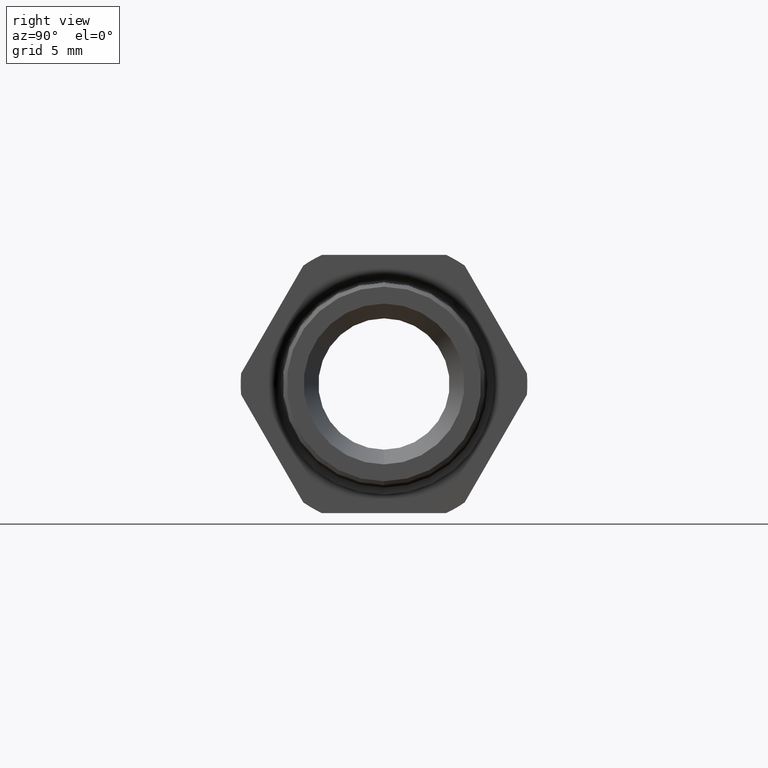
[diagram: clean part render]
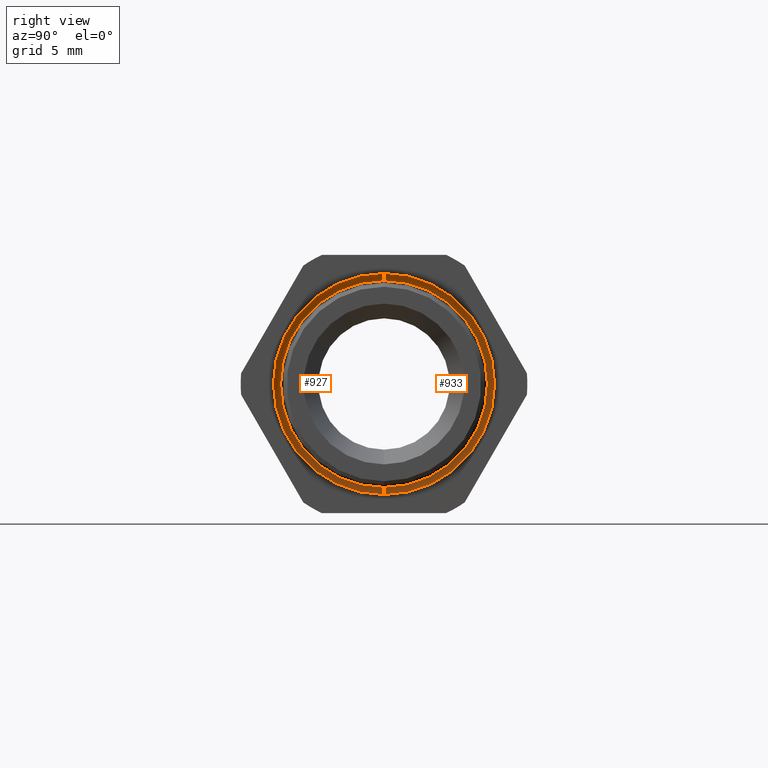
[diagram: same view with one multi-face feature highlighted, each face labeled with its STEP entity id]
A machine part, right view. The highlighted faces form ONE feature: a constant-radius fillet chain: 2 tangent blend faces with common blend radius 0.508 mm. The faces share edges in the B-rep.
Their STEP definitions:
[1] entity #927 (Torus):
#923 = EDGE_CURVE ( 'NONE', #979, #976, #2976, .T. ) ;
#927 = ADVANCED_FACE ( 'NONE', ( #2966 ), #2965, .F. ) ;
#928 = EDGE_LOOP ( 'NONE', ( #929, #1055, #1067, #1091 ) ) ;
#929 = ORIENTED_EDGE ( 'NONE', *, *, #923, .F. ) ;
#976 = VERTEX_POINT ( 'NONE', #3023 ) ;
#979 = VERTEX_POINT ( 'NONE', #3017 ) ;
#1046 = VERTEX_POINT ( 'NONE', #3159 ) ;
#1055 = ORIENTED_EDGE ( 'NONE', *, *, #1085, .T. ) ;
#1067 = ORIENTED_EDGE ( 'NONE', *, *, #1146, .F. ) ;
#1076 = EDGE_CURVE ( 'NONE', #976, #1046, #3232, .T. ) ;
#1085 = EDGE_CURVE ( 'NONE', #979, #1141, #3214, .T. ) ;
#1091 = ORIENTED_EDGE ( 'NONE', *, *, #1076, .F. ) ;
#1141 = VERTEX_POINT ( 'NONE', #3300 ) ;
#1146 = EDGE_CURVE ( 'NONE', #1046, #1141, #3348, .T. ) ;
#2961 = DIRECTION ( 'NONE',  ( 0.0000000000000000000, 0.0000000000000000000, -1.000000000000000000 ) ) ;
#2962 = DIRECTION ( 'NONE',  ( 1.000000000000000000, 0.0000000000000000000, 0.0000000000000000000 ) ) ;
#2963 = CARTESIAN_POINT ( 'NONE',  ( -0.3089999999999998300, 0.0000000000000000000, 0.0000000000000000000 ) ) ;
#2964 = AXIS2_PLACEMENT_3D ( 'NONE', #2963, #2962, #2961 ) ;
#2965 = TOROIDAL_SURFACE ( 'NONE', #2964, 0.2326988702144512900, 0.02000000000000000700 ) ;
#2966 = FACE_OUTER_BOUND ( 'NONE', #928, .T. ) ;
#2972 = DIRECTION ( 'NONE',  ( 0.0000000000000000000, 0.0000000000000000000, -1.000000000000000000 ) ) ;
#2973 = DIRECTION ( 'NONE',  ( 1.000000000000000000, 0.0000000000000000000, 0.0000000000000000000 ) ) ;
#2974 = CARTESIAN_POINT ( 'NONE',  ( -0.3089999999999998300, 0.0000000000000000000, 0.0000000000000000000 ) ) ;
#2975 = AXIS2_PLACEMENT_3D ( 'NONE', #2974, #2973, #2972 ) ;
#2976 = CIRCLE ( 'NONE', #2975, 0.2126988702144513000 ) ;
#3017 = CARTESIAN_POINT ( 'NONE',  ( -0.3089999999999998300, 2.604809905903860700E-017, 0.2126988702144513000 ) ) ;
#3023 = CARTESIAN_POINT ( 'NONE',  ( -0.3089999999999998300, 0.0000000000000000000, -0.2126988702144513000 ) ) ;
#3159 = CARTESIAN_POINT ( 'NONE',  ( -0.3100000000000000000, 0.0000000000000000000, -0.2526738545698894400 ) ) ;
#3210 = DIRECTION ( 'NONE',  ( 0.0000000000000000000, 1.224646799147354900E-016, 1.000000000000000000 ) ) ;
#3211 = DIRECTION ( 'NONE',  ( 0.0000000000000000000, 1.000000000000000000, -1.224646799147353200E-016 ) ) ;
#3212 = CARTESIAN_POINT ( 'NONE',  ( -0.3089999999999998300, 2.849739265733331700E-017, 0.2326988702144512900 ) ) ;
#3213 = AXIS2_PLACEMENT_3D ( 'NONE', #3212, #3211, #3210 ) ;
#3214 = CIRCLE ( 'NONE', #3213, 0.01999999999999999000 ) ;
#3228 = DIRECTION ( 'NONE',  ( 0.0000000000000000000, 0.0000000000000000000, -1.000000000000000000 ) ) ;
#3229 = DIRECTION ( 'NONE',  ( 0.0000000000000000000, -1.000000000000000000, 0.0000000000000000000 ) ) ;
#3230 = CARTESIAN_POINT ( 'NONE',  ( -0.3089999999999998300, 0.0000000000000000000, -0.2326988702144512900 ) ) ;
#3231 = AXIS2_PLACEMENT_3D ( 'NONE', #3230, #3229, #3228 ) ;
#3232 = CIRCLE ( 'NONE', #3231, 0.01999999999999999000 ) ;
#3300 = CARTESIAN_POINT ( 'NONE',  ( -0.3100000000000000000, 3.094362272272389200E-017, 0.2526738545698894400 ) ) ;
#3344 = DIRECTION ( 'NONE',  ( 0.0000000000000000000, 0.0000000000000000000, -1.000000000000000000 ) ) ;
#3345 = DIRECTION ( 'NONE',  ( -1.000000000000000000, 0.0000000000000000000, 0.0000000000000000000 ) ) ;
#3346 = CARTESIAN_POINT ( 'NONE',  ( -0.3100000000000000000, 0.0000000000000000000, 0.0000000000000000000 ) ) ;
#3347 = AXIS2_PLACEMENT_3D ( 'NONE', #3346, #3345, #3344 ) ;
#3348 = CIRCLE ( 'NONE', #3347, 0.2526738545698894400 ) ;
[2] entity #933 (Torus):
#215 = EDGE_CURVE ( 'NONE', #1141, #1046, #1733, .T. ) ;
#933 = ADVANCED_FACE ( 'NONE', ( #2960 ), #2959, .F. ) ;
#934 = EDGE_LOOP ( 'NONE', ( #935, #936, #937, #938 ) ) ;
#935 = ORIENTED_EDGE ( 'NONE', *, *, #978, .F. ) ;
#936 = ORIENTED_EDGE ( 'NONE', *, *, #1076, .T. ) ;
#937 = ORIENTED_EDGE ( 'NONE', *, *, #215, .F. ) ;
#938 = ORIENTED_EDGE ( 'NONE', *, *, #1085, .F. ) ;
#976 = VERTEX_POINT ( 'NONE', #3023 ) ;
#978 = EDGE_CURVE ( 'NONE', #976, #979, #3022, .T. ) ;
#979 = VERTEX_POINT ( 'NONE', #3017 ) ;
#1046 = VERTEX_POINT ( 'NONE', #3159 ) ;
#1076 = EDGE_CURVE ( 'NONE', #976, #1046, #3232, .T. ) ;
#1085 = EDGE_CURVE ( 'NONE', #979, #1141, #3214, .T. ) ;
#1141 = VERTEX_POINT ( 'NONE', #3300 ) ;
#1729 = DIRECTION ( 'NONE',  ( 0.0000000000000000000, 0.0000000000000000000, -1.000000000000000000 ) ) ;
#1730 = DIRECTION ( 'NONE',  ( -1.000000000000000000, 0.0000000000000000000, 0.0000000000000000000 ) ) ;
#1731 = CARTESIAN_POINT ( 'NONE',  ( -0.3100000000000000000, 0.0000000000000000000, 0.0000000000000000000 ) ) ;
#1732 = AXIS2_PLACEMENT_3D ( 'NONE', #1731, #1730, #1729 ) ;
#1733 = CIRCLE ( 'NONE', #1732, 0.2526738545698894400 ) ;
#2955 = DIRECTION ( 'NONE',  ( 0.0000000000000000000, 0.0000000000000000000, -1.000000000000000000 ) ) ;
#2956 = DIRECTION ( 'NONE',  ( 1.000000000000000000, 0.0000000000000000000, 0.0000000000000000000 ) ) ;
#2957 = CARTESIAN_POINT ( 'NONE',  ( -0.3089999999999998300, 0.0000000000000000000, 0.0000000000000000000 ) ) ;
#2958 = AXIS2_PLACEMENT_3D ( 'NONE', #2957, #2956, #2955 ) ;
#2959 = TOROIDAL_SURFACE ( 'NONE', #2958, 0.2326988702144512900, 0.02000000000000000700 ) ;
#2960 = FACE_OUTER_BOUND ( 'NONE', #934, .T. ) ;
#3017 = CARTESIAN_POINT ( 'NONE',  ( -0.3089999999999998300, 2.604809905903860700E-017, 0.2126988702144513000 ) ) ;
#3018 = DIRECTION ( 'NONE',  ( 0.0000000000000000000, 0.0000000000000000000, -1.000000000000000000 ) ) ;
#3019 = DIRECTION ( 'NONE',  ( 1.000000000000000000, 0.0000000000000000000, 0.0000000000000000000 ) ) ;
#3020 = CARTESIAN_POINT ( 'NONE',  ( -0.3089999999999998300, 0.0000000000000000000, 0.0000000000000000000 ) ) ;
#3021 = AXIS2_PLACEMENT_3D ( 'NONE', #3020, #3019, #3018 ) ;
#3022 = CIRCLE ( 'NONE', #3021, 0.2126988702144513000 ) ;
#3023 = CARTESIAN_POINT ( 'NONE',  ( -0.3089999999999998300, 0.0000000000000000000, -0.2126988702144513000 ) ) ;
#3159 = CARTESIAN_POINT ( 'NONE',  ( -0.3100000000000000000, 0.0000000000000000000, -0.2526738545698894400 ) ) ;
#3210 = DIRECTION ( 'NONE',  ( 0.0000000000000000000, 1.224646799147354900E-016, 1.000000000000000000 ) ) ;
#3211 = DIRECTION ( 'NONE',  ( 0.0000000000000000000, 1.000000000000000000, -1.224646799147353200E-016 ) ) ;
#3212 = CARTESIAN_POINT ( 'NONE',  ( -0.3089999999999998300, 2.849739265733331700E-017, 0.2326988702144512900 ) ) ;
#3213 = AXIS2_PLACEMENT_3D ( 'NONE', #3212, #3211, #3210 ) ;
#3214 = CIRCLE ( 'NONE', #3213, 0.01999999999999999000 ) ;
#3228 = DIRECTION ( 'NONE',  ( 0.0000000000000000000, 0.0000000000000000000, -1.000000000000000000 ) ) ;
#3229 = DIRECTION ( 'NONE',  ( 0.0000000000000000000, -1.000000000000000000, 0.0000000000000000000 ) ) ;
#3230 = CARTESIAN_POINT ( 'NONE',  ( -0.3089999999999998300, 0.0000000000000000000, -0.2326988702144512900 ) ) ;
#3231 = AXIS2_PLACEMENT_3D ( 'NONE', #3230, #3229, #3228 ) ;
#3232 = CIRCLE ( 'NONE', #3231, 0.01999999999999999000 ) ;
#3300 = CARTESIAN_POINT ( 'NONE',  ( -0.3100000000000000000, 3.094362272272389200E-017, 0.2526738545698894400 ) ) ;